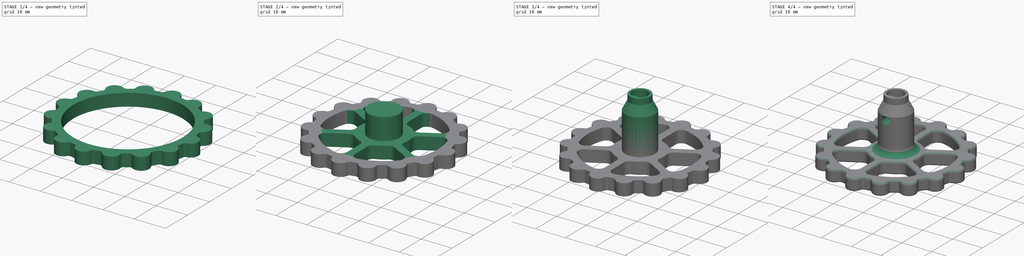
[diagram: build sequence overview — one tinted view per stage of 4, left to right]
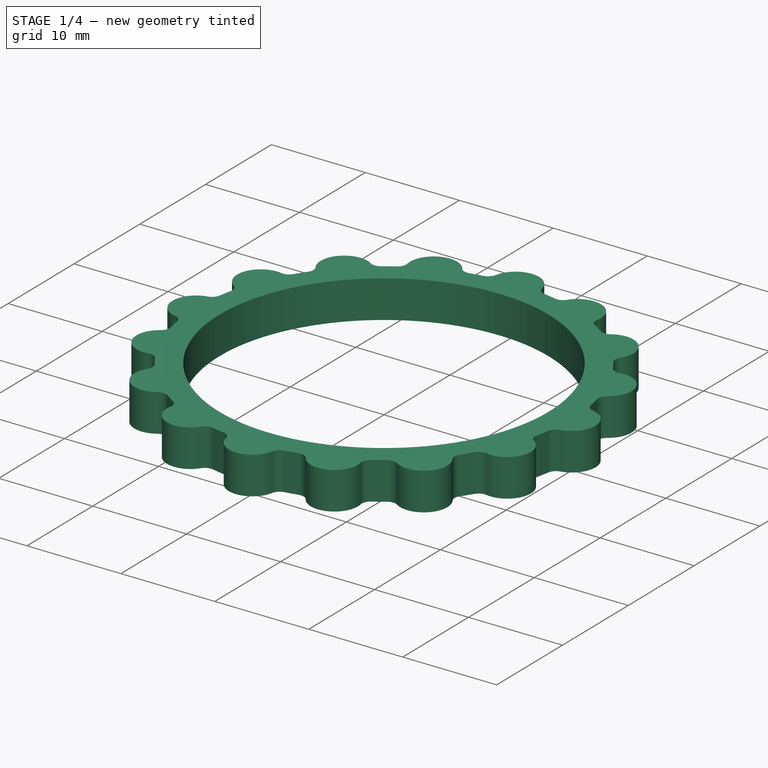
[diagram: stage 1 of 4 — iso view after this stage's code; geometry added in this stage tinted green]
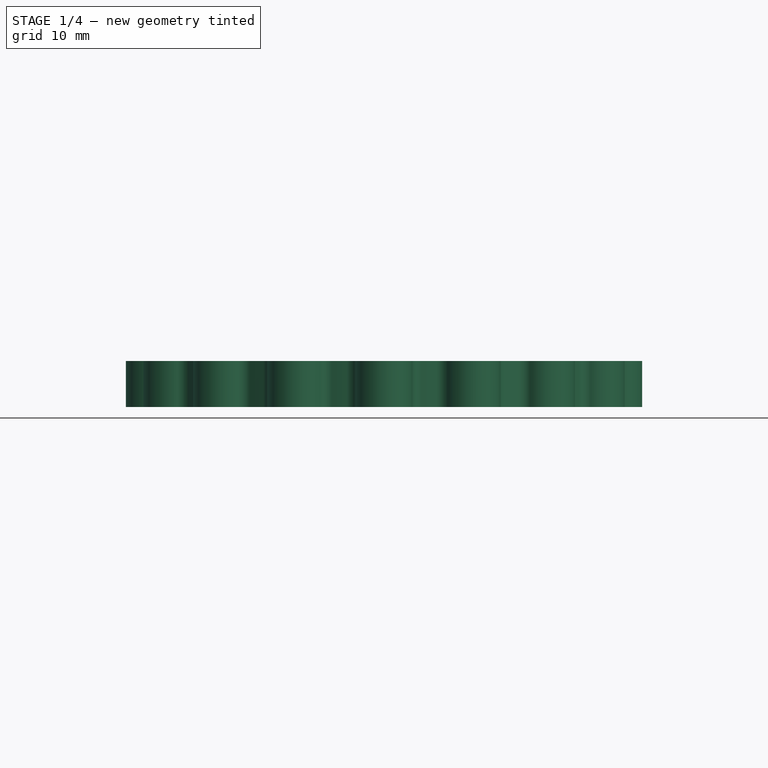
[diagram: stage 1 of 4 — front view after this stage's code; geometry added in this stage tinted green]
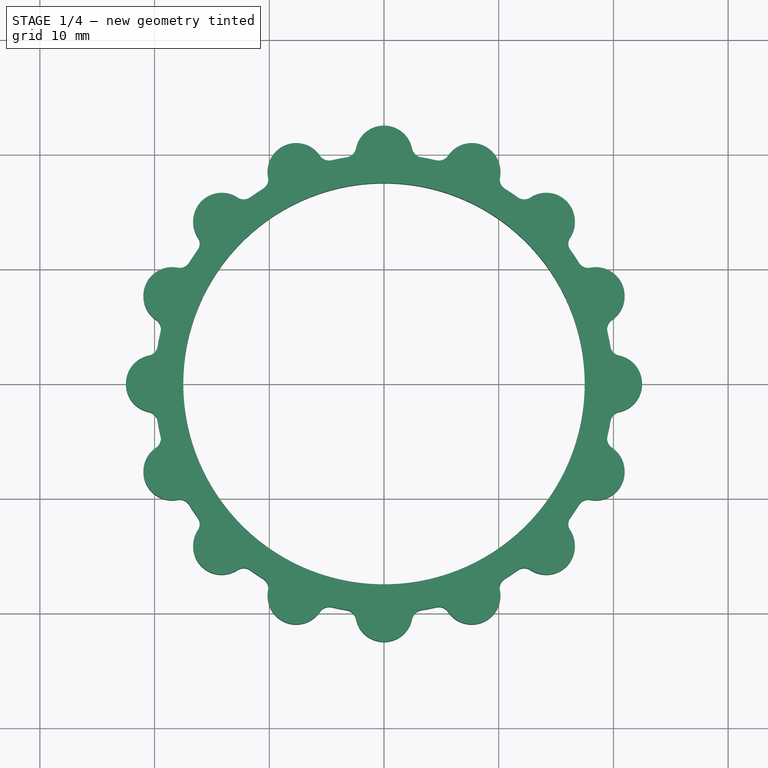
[diagram: stage 1 of 4 — top view after this stage's code; geometry added in this stage tinted green]
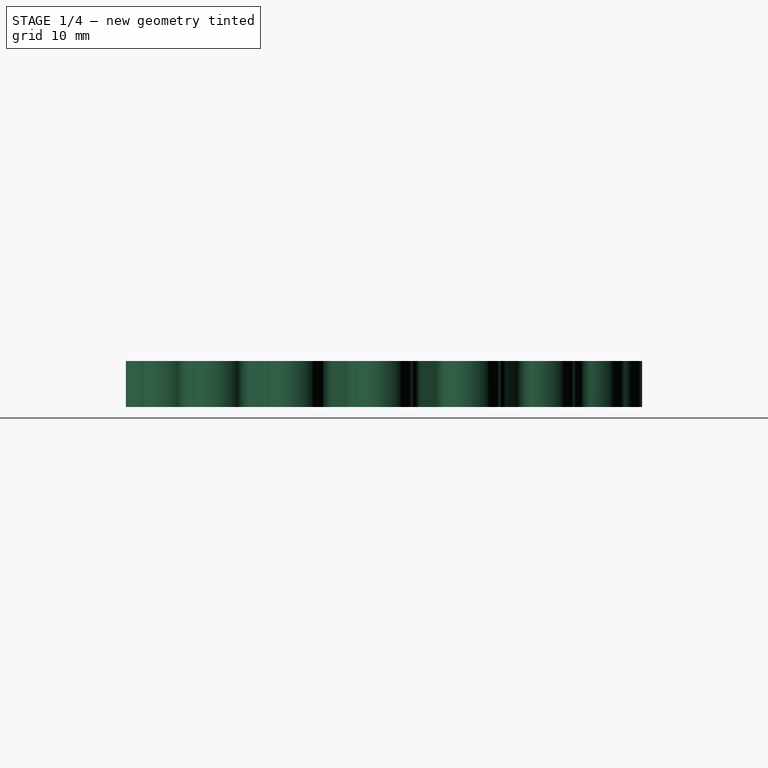
[diagram: stage 1 of 4 — right view after this stage's code; geometry added in this stage tinted green]
FCSTD DOCUMENT  (FreeCAD 0.18.1R)
Label: ExtruderKnobV2
License: All rights reserved
LicenseURL: http://en.wikipedia.org/wiki/All_rights_reserved
objects: Sketcher::SketchObject×9, PartDesign::Pad×6, PartDesign::PolarPattern×2, PartDesign::Fillet×2, PartDesign::AdditiveLoft×1, PartDesign::Pocket×1, PartDesign::Body×1, App::Part×1
note: 30 computed .brp shape members not serialized (recipe doc carries the construction recipe); baked Part::Feature solids carry a one-line shape summary decoded from their .brp

FEATURE [Sketcher::SketchObject] Sketch
  MapMode = 5
  Support = -> [XY_Plane001]
  sketch-geometry (2):
    g0: Circle CenterX=0 CenterY=0 CenterZ=0 NormalX=0 NormalY=0 NormalZ=1 AngleXU=0 Radius=20
    g1: Circle CenterX=0 CenterY=0 CenterZ=0 NormalX=0 NormalY=0 NormalZ=1 AngleXU=0 Radius=17.5
  constraints (4):
    c: Coincident(g0,g-1)
    c: Coincident(g1,g0)
    c: Radius(g0) = 20  'Rout'
    c: Radius(g1) = 17.5  'Rin'
FEATURE [PartDesign::Pad] Pad
  Length = 4
  Length2 = 100
  Profile = -> Sketch
  Type = 0
FEATURE [Sketcher::SketchObject] Sketch001
  MapMode = 5
  Support = -> [XY_Plane001]
  expr: Constraints[10] = Sketch.Constraints.Rout
  sketch-geometry (5):
    g0: ArcOfCircle CenterX=0 CenterY=20 CenterZ=0 NormalX=0 NormalY=0 NormalZ=1 AngleXU=0 Radius=2.5 StartAngle=0.201358 EndAngle=2.94023
    g1: ArcOfCircle CenterX=-3.40207 CenterY=20.6944 CenterZ=0 NormalX=0 NormalY=0 NormalZ=1 AngleXU=0 Radius=0.972222 StartAngle=4.87533 EndAngle=6.08183
    g2: ArcOfCircle CenterX=3.40207 CenterY=20.6944 CenterZ=0 NormalX=0 NormalY=0 NormalZ=1 AngleXU=0 Radius=0.972222 StartAngle=3.34295 EndAngle=4.54945
    g3: LineSegment [constr] StartX=-2.44949 StartY=20.5 StartZ=0 EndX=2.44949 EndY=20.5 EndZ=0
    g4: ArcOfCircle CenterX=0 CenterY=0 CenterZ=0 NormalX=0 NormalY=0 NormalZ=1 AngleXU=0 Radius=20 StartAngle=1.40786 EndAngle=1.73373
  constraints (12):
    c: Radius(g0) = 2.5
    c: Symmetric(g0,g0,g-2)
    c: Tangent(g0,g1) = 1.5708
    c: Tangent(g0,g2) = 1.5708
    c: Coincident(g3,g0)
    c: Coincident(g0,g3)
    c: DistanceY(g0,g0) = 0.5
    c: Coincident(g4,g-1)
    c: Tangent(g2,g4) = 1.5708
    c: Tangent(g1,g4) = 1.5708
    c: Radius(g4) = 20
    c: PointOnObject(g0,g4)
FEATURE [PartDesign::Pad] Pad001
  BaseFeature = -> Pad
  Length = 4
  Length2 = 100
  Profile = -> Sketch001
  Type = 0
  expr: Length = Pad.Length
FEATURE [PartDesign::PolarPattern] PolarPattern
  Angle = 360
  Axis = -> Sketch001 [N_Axis]
  BaseFeature = -> Pad001
  Occurrences = 16
  Originals = -> [Pad001]
  Refine = true
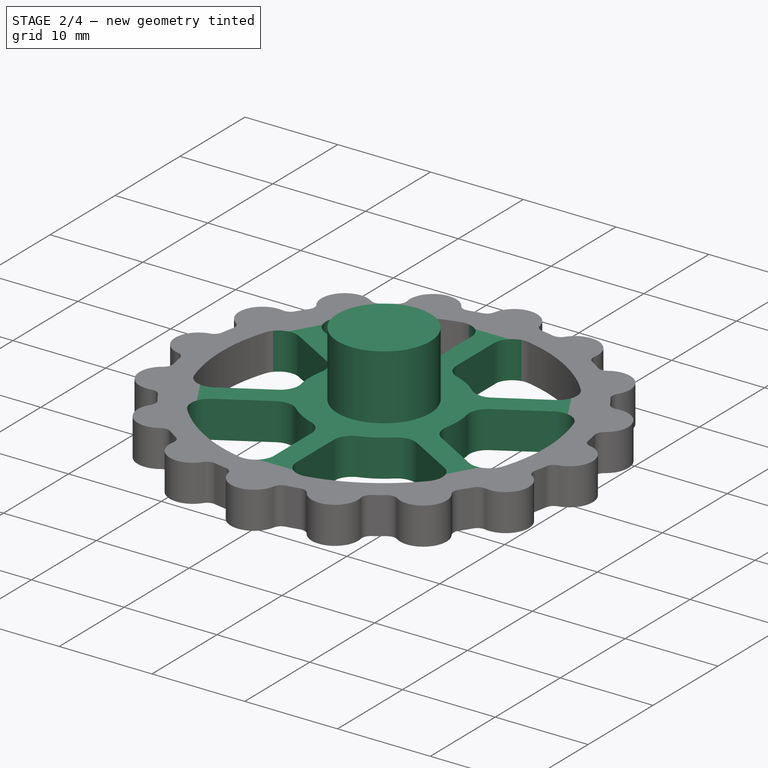
[diagram: stage 2 of 4 — iso view after this stage's code; geometry added in this stage tinted green]
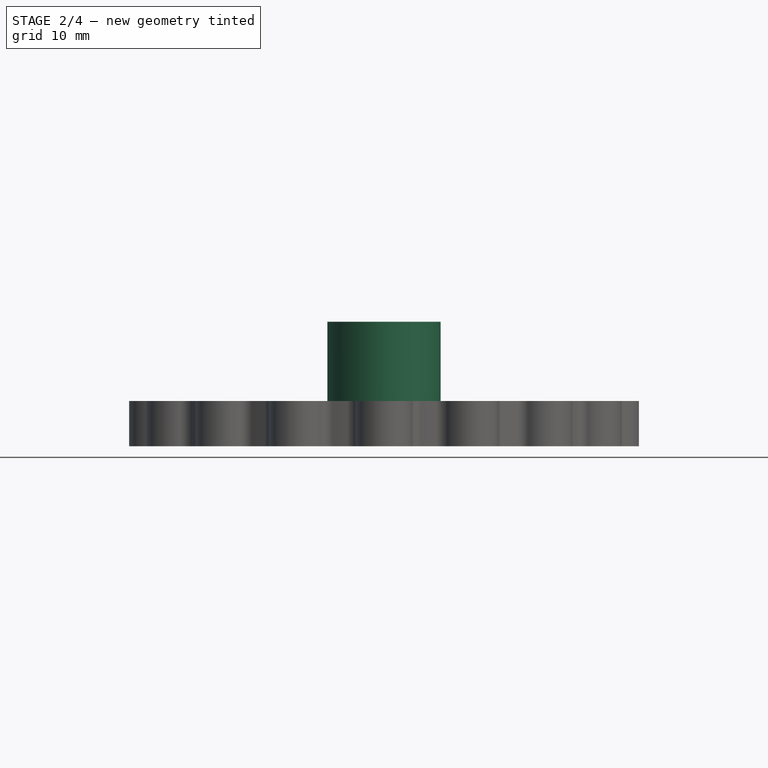
[diagram: stage 2 of 4 — front view after this stage's code; geometry added in this stage tinted green]
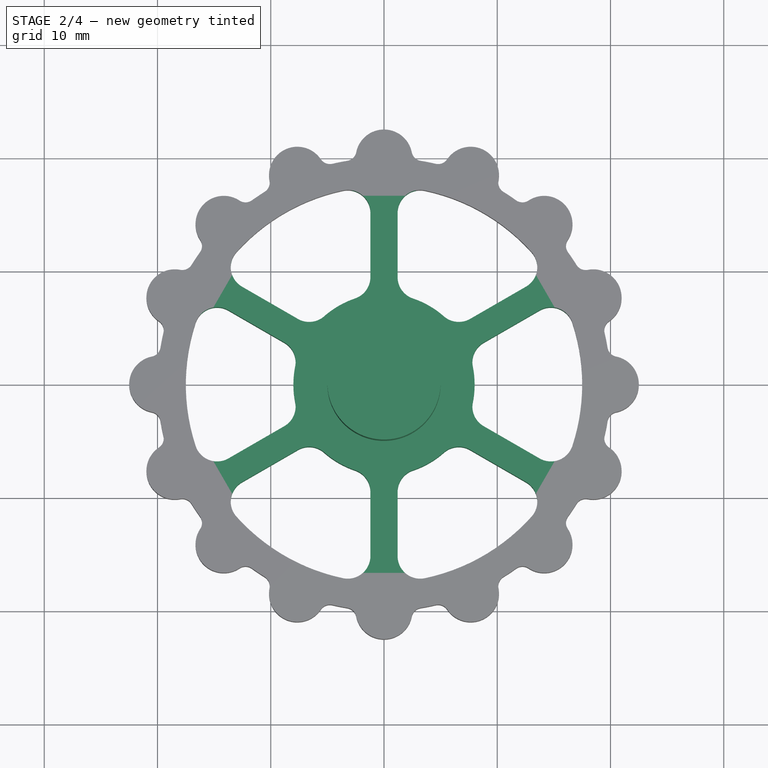
[diagram: stage 2 of 4 — top view after this stage's code; geometry added in this stage tinted green]
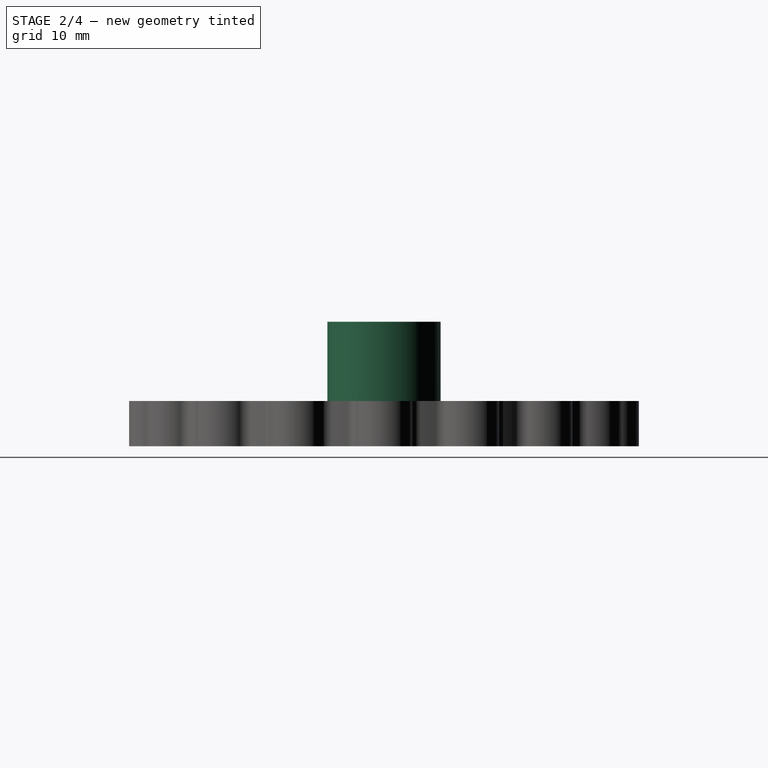
[diagram: stage 2 of 4 — right view after this stage's code; geometry added in this stage tinted green]
FEATURE [Sketcher::SketchObject] Sketch002
  MapMode = 5
  Support = -> [XY_Plane001]
  expr: Constraints[5] = Sketch.Constraints.Rin
  sketch-geometry (8):
    g0: ArcOfCircle CenterX=0 CenterY=0 CenterZ=0 NormalX=0 NormalY=0 NormalZ=1 AngleXU=0 Radius=8 StartAngle=1.89653 EndAngle=7.52825
    g1: LineSegment StartX=-1.2 StartY=9.47418 StartZ=0 EndX=-1.2 EndY=15.1661 EndZ=0
    g2: ArcOfCircle CenterX=0 CenterY=0 CenterZ=0 NormalX=0 NormalY=0 NormalZ=1 AngleXU=0 Radius=17.5 StartAngle=1.36285 EndAngle=1.77874
    g3: LineSegment StartX=1.2 StartY=15.1661 StartZ=0 EndX=1.2 EndY=9.47418 EndZ=0
    g4: ArcOfCircle CenterX=3.2 CenterY=15.1661 CenterZ=0 NormalX=0 NormalY=0 NormalZ=1 AngleXU=0 Radius=2 StartAngle=1.36285 EndAngle=3.14159
    g5: ArcOfCircle CenterX=-3.2 CenterY=15.1661 CenterZ=0 NormalX=0 NormalY=0 NormalZ=1 AngleXU=0 Radius=2 StartAngle=0 EndAngle=1.77874
    g6: ArcOfCircle CenterX=-3.2 CenterY=9.47418 CenterZ=0 NormalX=0 NormalY=0 NormalZ=1 AngleXU=0 Radius=2 StartAngle=5.03812 EndAngle=6.28319
    g7: ArcOfCircle CenterX=3.2 CenterY=9.47418 CenterZ=0 NormalX=0 NormalY=0 NormalZ=1 AngleXU=0 Radius=2 StartAngle=3.14159 EndAngle=4.38666
  constraints (21):
    c: Coincident(g0,g-1)
    c: Radius(g0) = 8  'Rhandle'
    c: Symmetric(g0,g0,g-2)
    c: Vertical(g1)
    c: Vertical(g3)
    c: Radius(g2) = 17.5
    c: Coincident(g2,g0)
    c: Equal(g1,g3)
    c: Equal(g5,g4)
    c: Tangent(g4,g3) = -1.5708
    c: Tangent(g5,g1) = -1.5708
    c: Radius(g4) = 2
    c: DistanceX(g1,g3) = 2.4
    c: Tangent(g2,g5) = -1.5708
    c: Tangent(g2,g4) = -1.5708
    c: Tangent(g3,g7) = -1.5708
    c: Tangent(g1,g6) = -1.5708
    c: Equal(g6,g7)
    c: Tangent(g0,g6) = 1.5708
    c: Tangent(g0,g7) = 1.5708
    c: Equal(g5,g6)
FEATURE [PartDesign::Pad] Pad002
  BaseFeature = -> PolarPattern
  Length = 4
  Length2 = 100
  Profile = -> Sketch002
  Type = 0
  expr: Length = Pad.Length
FEATURE [PartDesign::PolarPattern] PolarPattern001
  Angle = 360
  Axis = -> Sketch002 [N_Axis]
  BaseFeature = -> Pad002
  Occurrences = 6
  Originals = -> [Pad002]
  Refine = true
FEATURE [Sketcher::SketchObject] Sketch003
  AttachmentOffset = pos=(0,0,4) rot=(0,0,1;0rad)
  MapMode = 5
  Placement = pos=(0,0,4) rot=(0,0,1;0rad)
  Support = -> [XY_Plane001]
  expr: Constraints[6] = Constraints.Ri - 0.5mm
  expr: AttachmentOffset.Base.z = Pad.Length
  sketch-geometry (3):
    g0: Circle CenterX=0 CenterY=0 CenterZ=0 NormalX=0 NormalY=0 NormalZ=1 AngleXU=0 Radius=5
    g1: ArcOfCircle [constr] CenterX=0 CenterY=0 CenterZ=0 NormalX=0 NormalY=0 NormalZ=1 AngleXU=0 Radius=2.65 StartAngle=5.33678 EndAngle=10.3712
    g2: LineSegment [constr] StartX=-1.54919 StartY=-2.15 StartZ=0 EndX=1.54919 EndY=-2.15 EndZ=0
  constraints (8):
    c: Coincident(g0,g-1)
    c: Radius(g0) = 5  'Ro'
    c: Coincident(g1,g0)
    c: Coincident(g2,g1)
    c: Coincident(g2,g1)
    c: Horizontal(g2)
    c: DistanceY(g1,g0) = 2.15
    c: Radius(g1) = 2.65  'Ri'
FEATURE [PartDesign::Pad] Pad003
  BaseFeature = -> PolarPattern001
  Length = 7
  Length2 = 100
  Profile = -> Sketch003
  Refine = true
  Type = 0
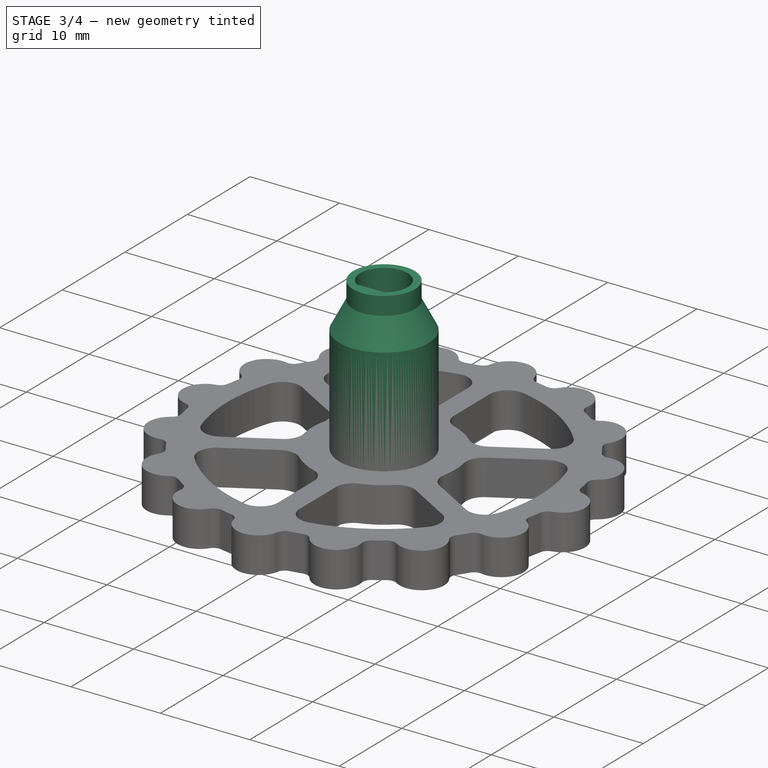
[diagram: stage 3 of 4 — iso view after this stage's code; geometry added in this stage tinted green]
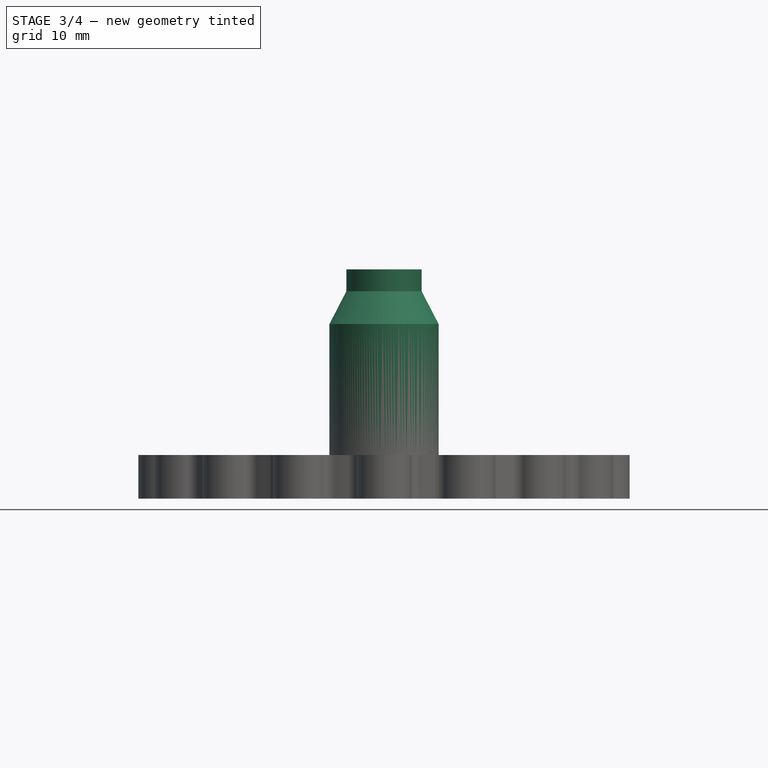
[diagram: stage 3 of 4 — front view after this stage's code; geometry added in this stage tinted green]
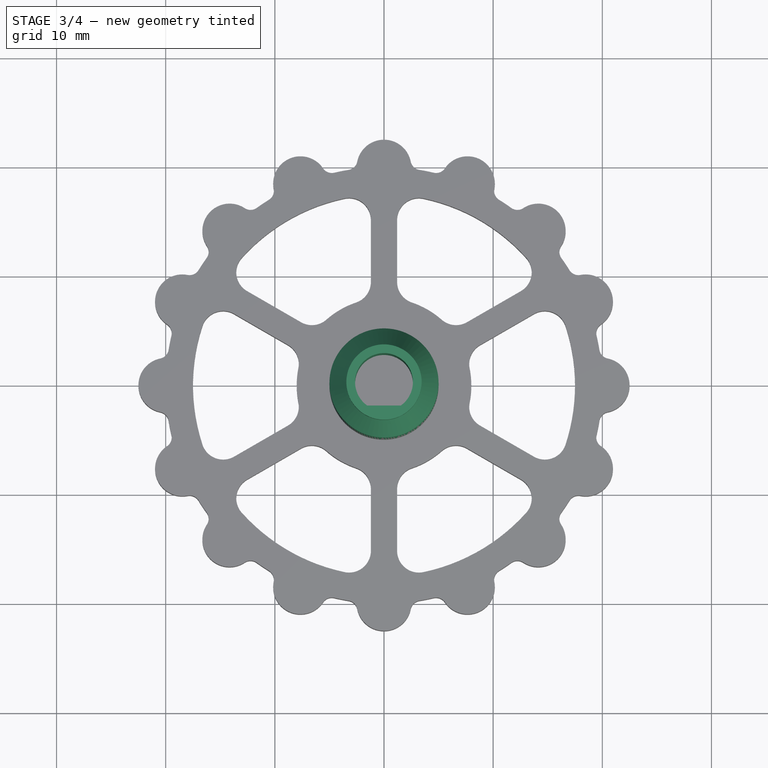
[diagram: stage 3 of 4 — top view after this stage's code; geometry added in this stage tinted green]
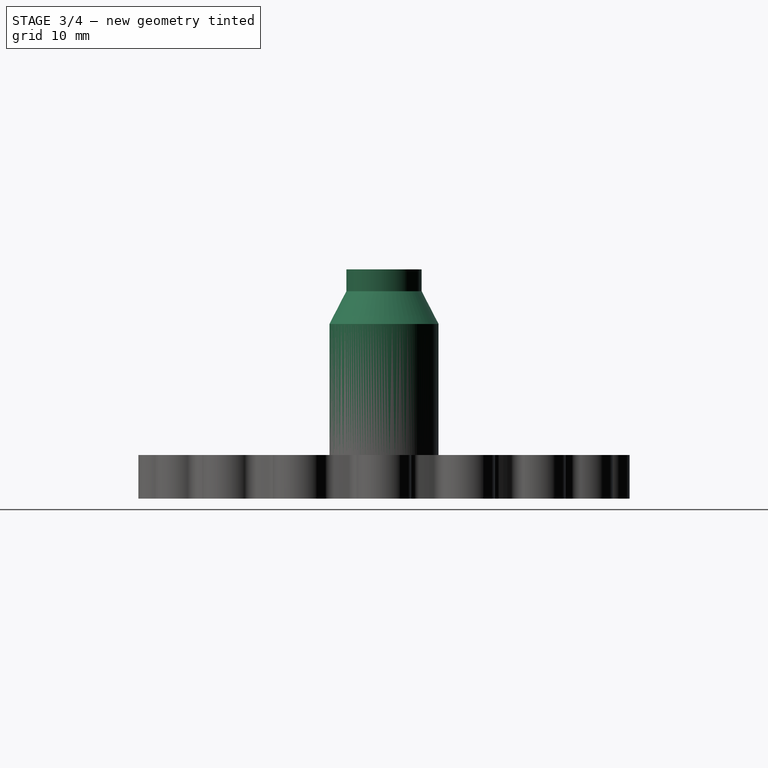
[diagram: stage 3 of 4 — right view after this stage's code; geometry added in this stage tinted green]
FEATURE [Sketcher::SketchObject] Sketch004
  AttachmentOffset = pos=(0,0,16) rot=(0,0,1;0rad)
  MapMode = 5
  Placement = pos=(0,0,16) rot=(0,0,1;0rad)
  Support = -> [XY_Plane001]
  expr: Constraints[7] = Sketch003.Constraints.Ri
  expr: Constraints[1] = Sketch003.Constraints.Ro
  expr: Constraints[6] = Sketch003.Constraints.Ri - 0.5mm
  expr: AttachmentOffset.Base.z = Sketch008.AttachmentOffset.Base.z + Pad005.Length
  sketch-geometry (3):
    g0: Circle CenterX=0 CenterY=0 CenterZ=0 NormalX=0 NormalY=0 NormalZ=1 AngleXU=0 Radius=5
    g1: ArcOfCircle CenterX=0 CenterY=0 CenterZ=0 NormalX=0 NormalY=0 NormalZ=1 AngleXU=0 Radius=2.65 StartAngle=5.33678 EndAngle=10.3712
    g2: LineSegment StartX=-1.54919 StartY=-2.15 StartZ=0 EndX=1.54919 EndY=-2.15 EndZ=0
  constraints (8):
    c: Coincident(g0,g-1)
    c: Radius(g0) = 5
    c: Coincident(g1,g0)
    c: Coincident(g2,g1)
    c: Coincident(g2,g1)
    c: Horizontal(g2)
    c: DistanceY(g1,g0) = 2.15
    c: Radius(g1) = 2.65
FEATURE [Sketcher::SketchObject] Sketch005
  AttachmentOffset = pos=(0,0,19) rot=(0,0,1;0rad)
  MapMode = 5
  Placement = pos=(0,0,19) rot=(0,0,1;0rad)
  Support = -> [XY_Plane001]
  expr: Constraints[1] = Constraints.R + 0.8mm
  expr: Constraints.R = Sketch003.Constraints.Ri
  expr: Constraints[6] = Sketch003.Constraints.Ri - 0.5mm
  expr: AttachmentOffset.Base.z = Sketch004.AttachmentOffset.Base.z + 3mm
  sketch-geometry (3):
    g0: Circle CenterX=0 CenterY=0 CenterZ=0 NormalX=0 NormalY=0 NormalZ=1 AngleXU=0 Radius=3.45
    g1: ArcOfCircle CenterX=0 CenterY=0 CenterZ=0 NormalX=0 NormalY=0 NormalZ=1 AngleXU=0 Radius=2.65 StartAngle=5.33678 EndAngle=10.3712
    g2: LineSegment StartX=-1.54919 StartY=-2.15 StartZ=0 EndX=1.54919 EndY=-2.15 EndZ=0
  constraints (8):
    c: Coincident(g0,g-1)
    c: Radius(g0) = 3.45
    c: Coincident(g1,g0)
    c: Coincident(g2,g1)
    c: Coincident(g2,g1)
    c: Horizontal(g2)
    c: DistanceY(g1,g0) = 2.15
    c: Radius(g1) = 2.65  'R'
FEATURE [Sketcher::SketchObject] Sketch006
  AttachmentOffset = pos=(0,0,19) rot=(0,0,1;0rad)
  MapMode = 5
  Placement = pos=(0,0,19) rot=(0,0,1;0rad)
  Support = -> [XY_Plane001]
  expr: Constraints[1] = Constraints.R + 0.8mm
  expr: Constraints.R = Sketch003.Constraints.Ri
  expr: Constraints[6] = Sketch003.Constraints.Ri - 0.5mm
  expr: AttachmentOffset.Base.z = Sketch005.AttachmentOffset.Base.z
  sketch-geometry (3):
    g0: Circle CenterX=0 CenterY=0 CenterZ=0 NormalX=0 NormalY=0 NormalZ=1 AngleXU=0 Radius=3.45
    g1: ArcOfCircle CenterX=0 CenterY=0 CenterZ=0 NormalX=0 NormalY=0 NormalZ=1 AngleXU=0 Radius=2.65 StartAngle=5.33678 EndAngle=10.3712
    g2: LineSegment StartX=-1.54919 StartY=-2.15 StartZ=0 EndX=1.54919 EndY=-2.15 EndZ=0
  constraints (8):
    c: Coincident(g0,g-1)
    c: Radius(g0) = 3.45
    c: Coincident(g1,g0)
    c: Coincident(g2,g1)
    c: Coincident(g2,g1)
    c: Horizontal(g2)
    c: DistanceY(g1,g0) = 2.15
    c: Radius(g1) = 2.65  'R'
FEATURE [Sketcher::SketchObject] Sketch007
  MapMode = 5
  Placement = pos=(0,0,0) rot=(1,0,0;1.5708rad)
  Support = -> [XZ_Plane001]
  expr: Constraints[2] = Pad.Length + Pad003.Length + Pad005.Length - Constraints.R
  sketch-geometry (1):
    g0: Circle CenterX=0 CenterY=14.6 CenterZ=0 NormalX=0 NormalY=0 NormalZ=1 AngleXU=0 Radius=1.4
  constraints (3):
    c: PointOnObject(g0,g-2)
    c: Radius(g0) = 1.4  'R'
    c: DistanceY(g-1,g0) = 14.6
FEATURE [Sketcher::SketchObject] Sketch008
  AttachmentOffset = pos=(0,0,11) rot=(0,0,1;0rad)
  MapMode = 5
  Placement = pos=(0,0,11) rot=(0,0,1;0rad)
  Support = -> [XY_Plane001]
  expr: Constraints[7] = Sketch003.Constraints.Ri
  expr: Constraints[1] = Sketch003.Constraints.Ro
  expr: Constraints[6] = Sketch003.Constraints.Ri - 0.5mm
  expr: AttachmentOffset.Base.z = Sketch003.AttachmentOffset.Base.z + Pad003.Length
  sketch-geometry (3):
    g0: Circle CenterX=0 CenterY=0 CenterZ=0 NormalX=0 NormalY=0 NormalZ=1 AngleXU=0 Radius=5
    g1: ArcOfCircle CenterX=0 CenterY=0 CenterZ=0 NormalX=0 NormalY=0 NormalZ=1 AngleXU=0 Radius=2.65 StartAngle=5.33678 EndAngle=10.3712
    g2: LineSegment StartX=-1.54919 StartY=-2.15 StartZ=0 EndX=1.54919 EndY=-2.15 EndZ=0
  constraints (8):
    c: Coincident(g0,g-1)
    c: Radius(g0) = 5
    c: Coincident(g1,g0)
    c: Coincident(g2,g1)
    c: Coincident(g2,g1)
    c: Horizontal(g2)
    c: DistanceY(g1,g0) = 2.15
    c: Radius(g1) = 2.65
FEATURE [PartDesign::Pad] Pad005
  BaseFeature = -> Pad003
  Length = 5
  Length2 = 100
  Profile = -> Sketch008
  Type = 0
FEATURE [PartDesign::AdditiveLoft] AdditiveLoft
  BaseFeature = -> Pad005
  Closed = false
  Profile = -> Sketch004
  Ruled = false
  Sections = -> [Sketch005]
FEATURE [PartDesign::Pad] Pad004
  BaseFeature = -> AdditiveLoft
  Length = 2
  Length2 = 100
  Profile = -> Sketch006
  Refine = true
  Type = 0
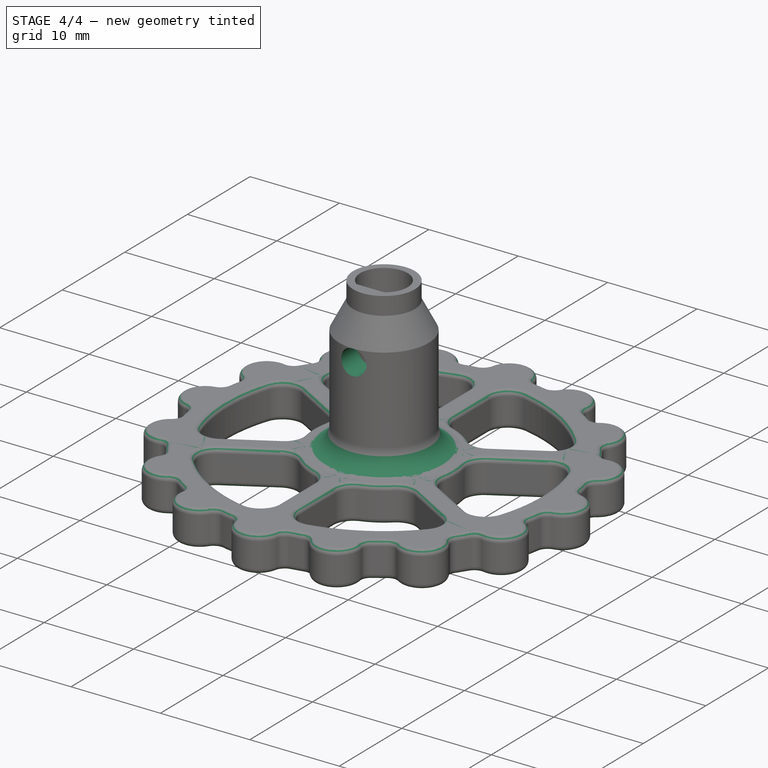
[diagram: stage 4 of 4 — iso view after this stage's code; geometry added in this stage tinted green]
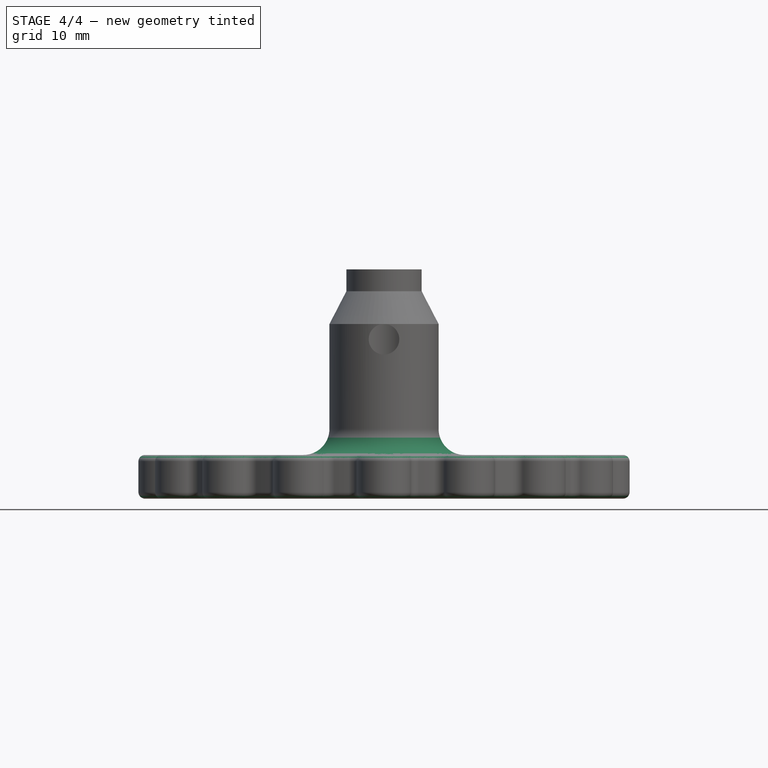
[diagram: stage 4 of 4 — front view after this stage's code; geometry added in this stage tinted green]
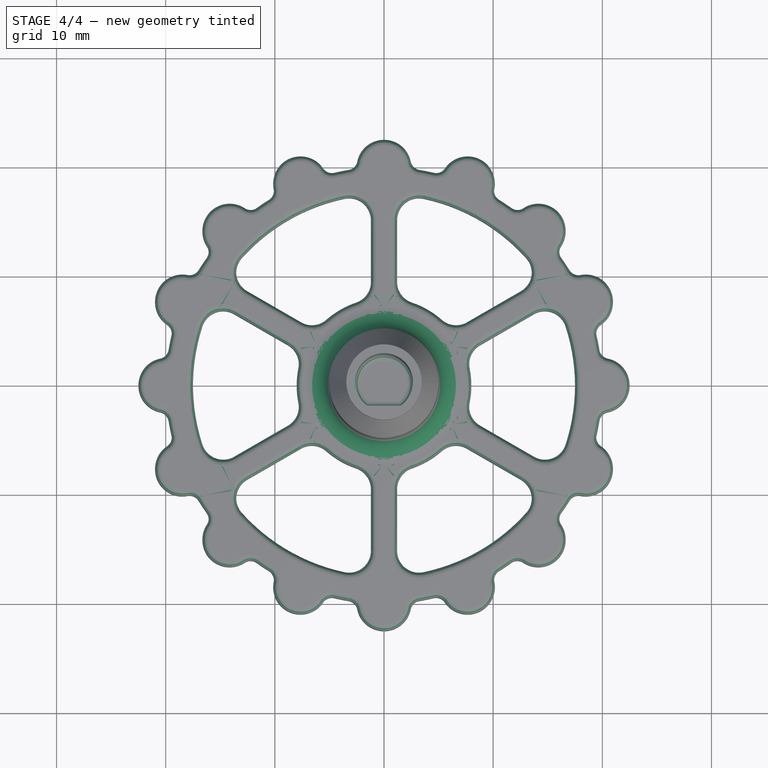
[diagram: stage 4 of 4 — top view after this stage's code; geometry added in this stage tinted green]
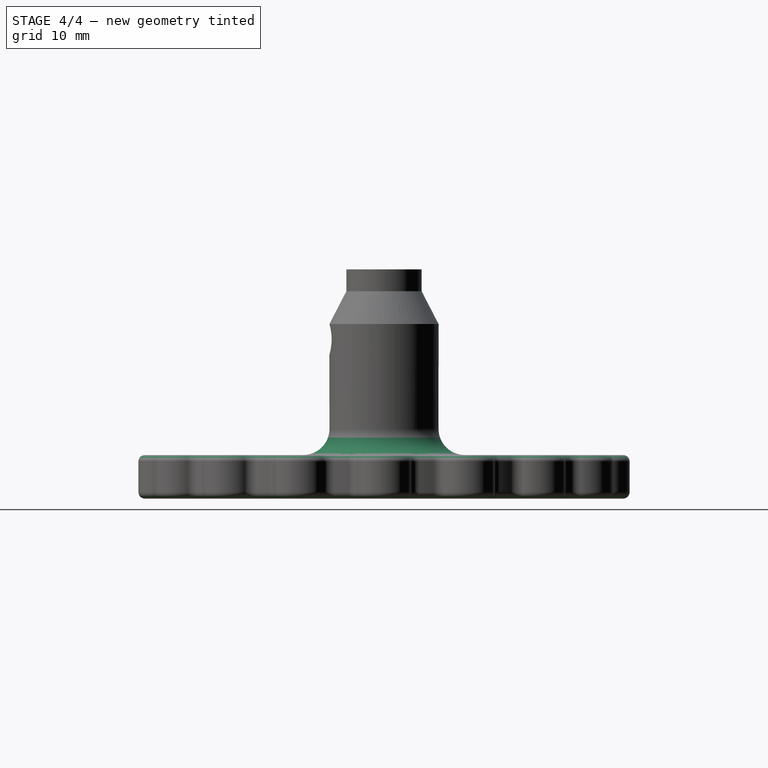
[diagram: stage 4 of 4 — right view after this stage's code; geometry added in this stage tinted green]
FEATURE [PartDesign::Pocket] Pocket
  BaseFeature = -> Pad004
  Length = 5
  Length2 = 100
  Profile = -> Sketch007
  Reversed = true
  Type = 1
FEATURE [PartDesign::Fillet] Fillet
  Base = -> Pocket [Face122,Edge57,Edge102,Edge118,Edge85,Edge77,Edge94,Edge110,Edge135,Edge132]
  BaseFeature = -> Pocket
  Radius = 0.6
FEATURE [PartDesign::Fillet] Fillet001
  Base = -> Fillet [Edge65]
  BaseFeature = -> Fillet
  Radius = 2.39
FEATURE [PartDesign::Body] Body
  Group = -> [Sketch,Pad,Sketch001,Pad001,PolarPattern,Sketch002,Pad002,PolarPattern001,Sketch003,Pad003,Pad005,Sketch004,Sketch005,AdditiveLoft,Sketch006,Pad004,Sketch007,Pocket,Sketch008,Fillet,Fillet001]
  Origin = -> Origin001
  Tip = -> Fillet001
FEATURE [App::Part] Part
  Group = -> [Body]
  Origin = -> Origin
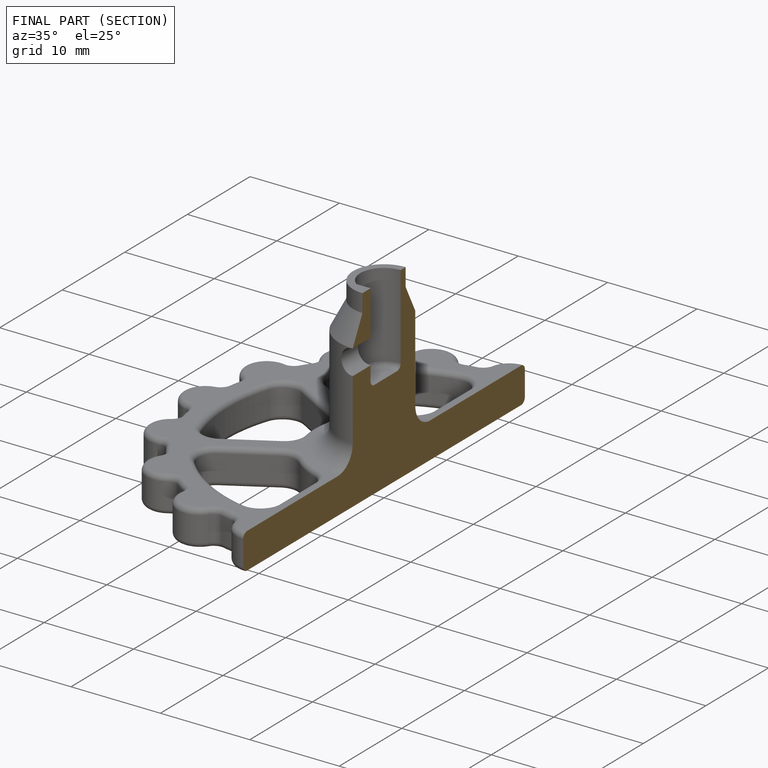
[diagram: finished part — half-section view (interior)]
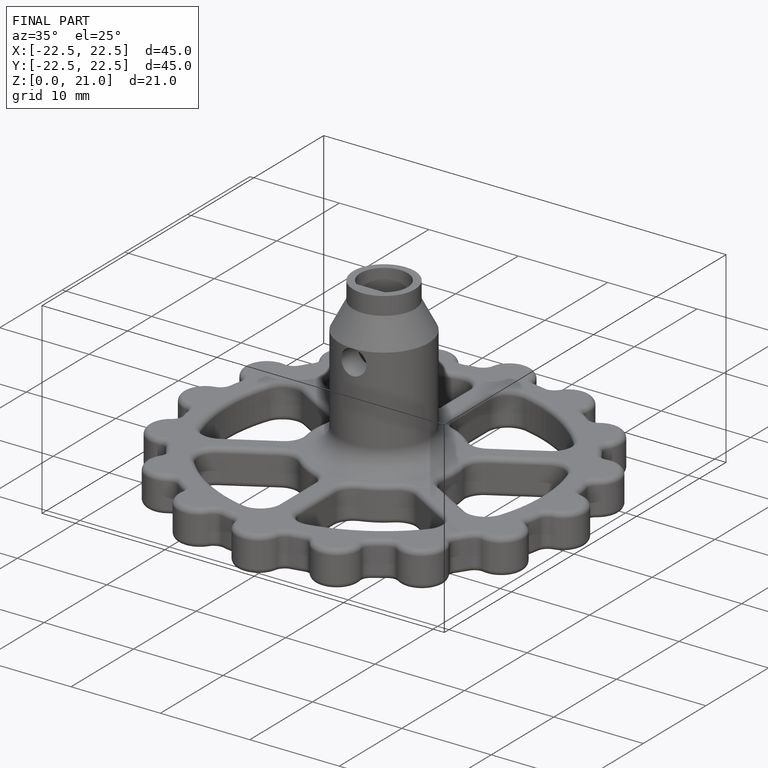
[diagram: finished part — iso view with bounding-box wireframe]
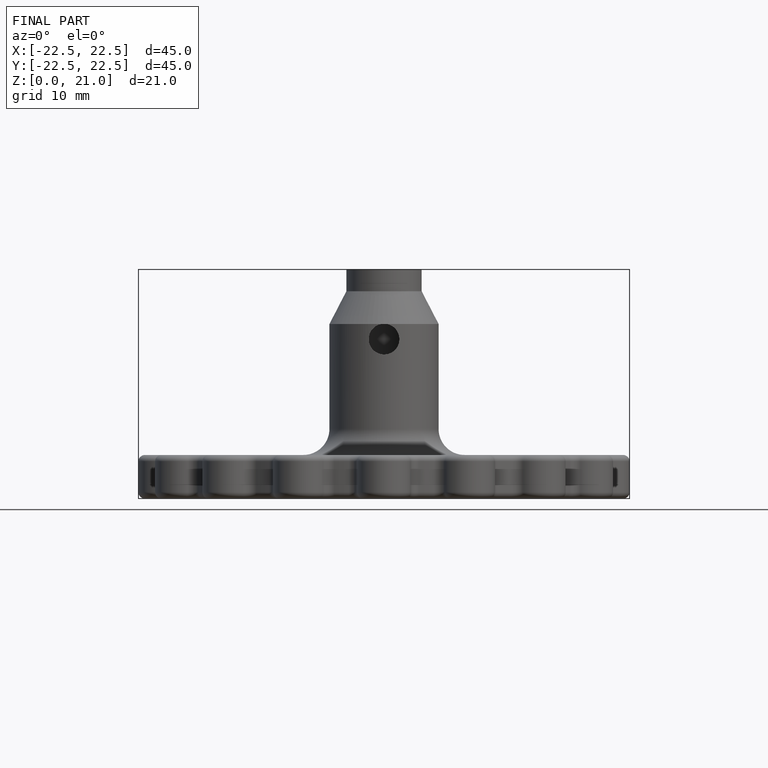
[diagram: finished part — front view with bounding-box wireframe]
